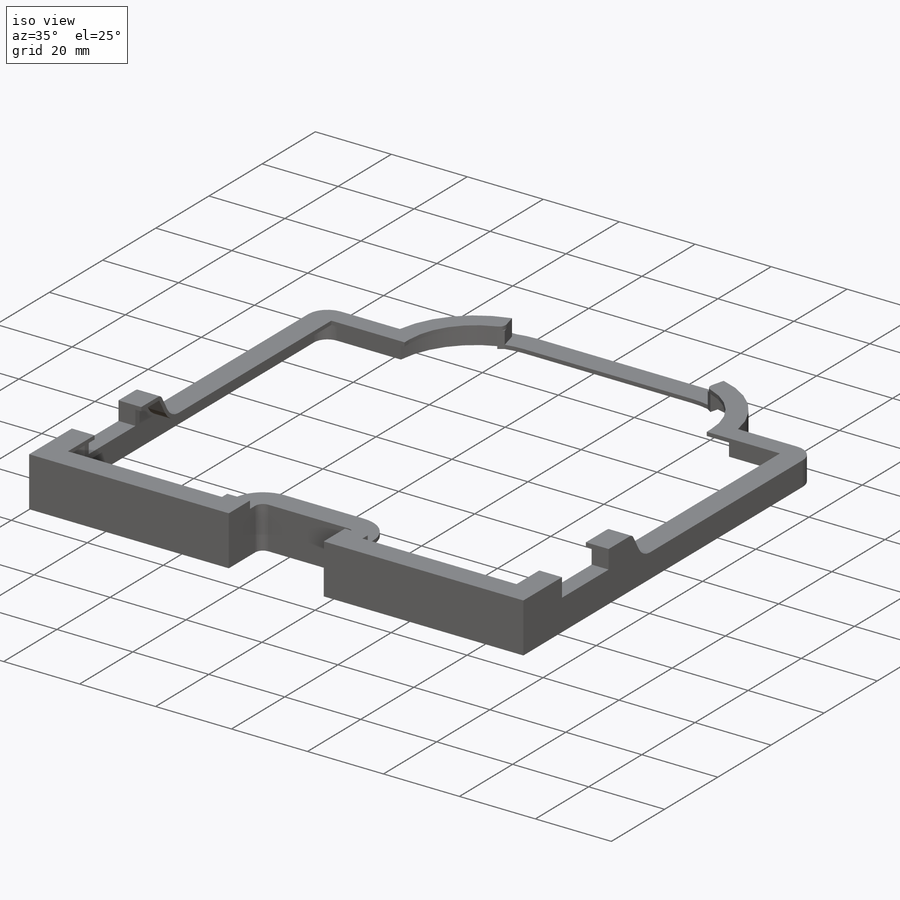
[diagram: iso view]
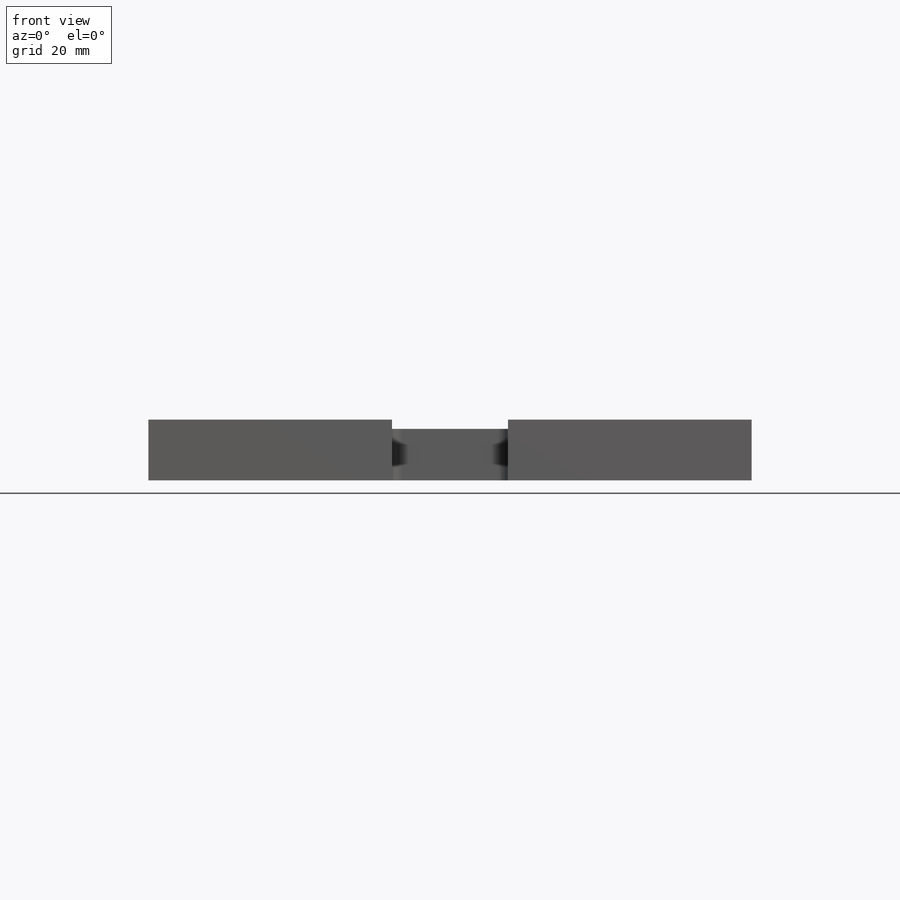
[diagram: front view]
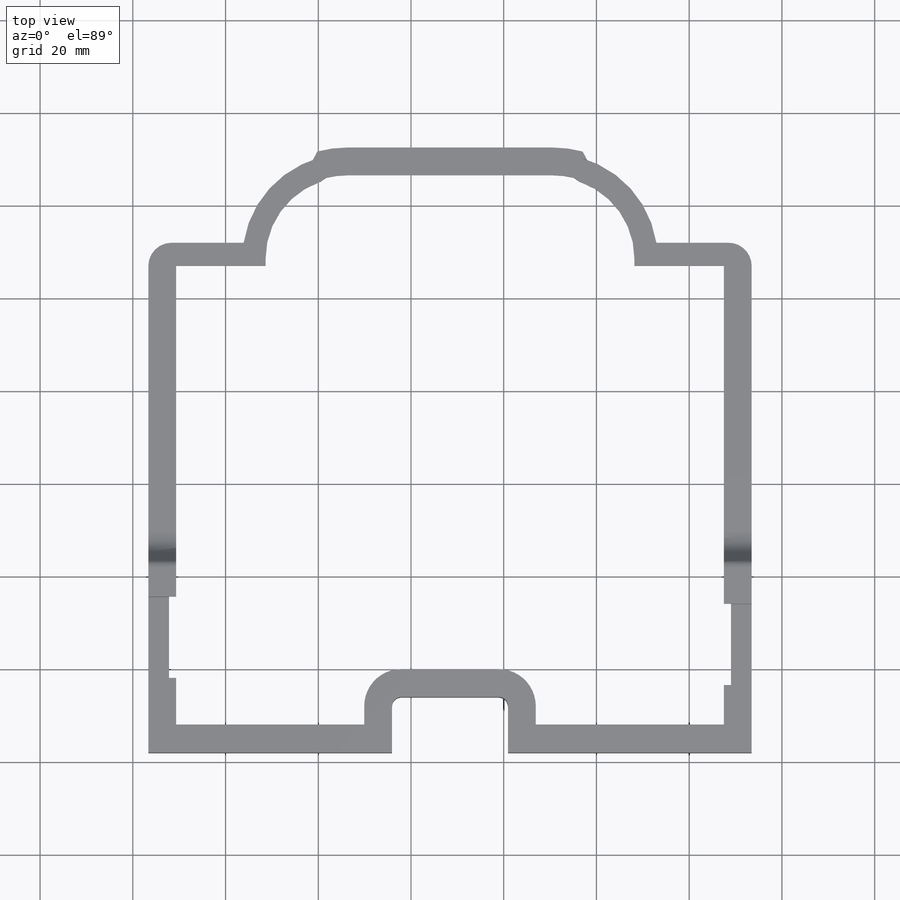
[diagram: top view]
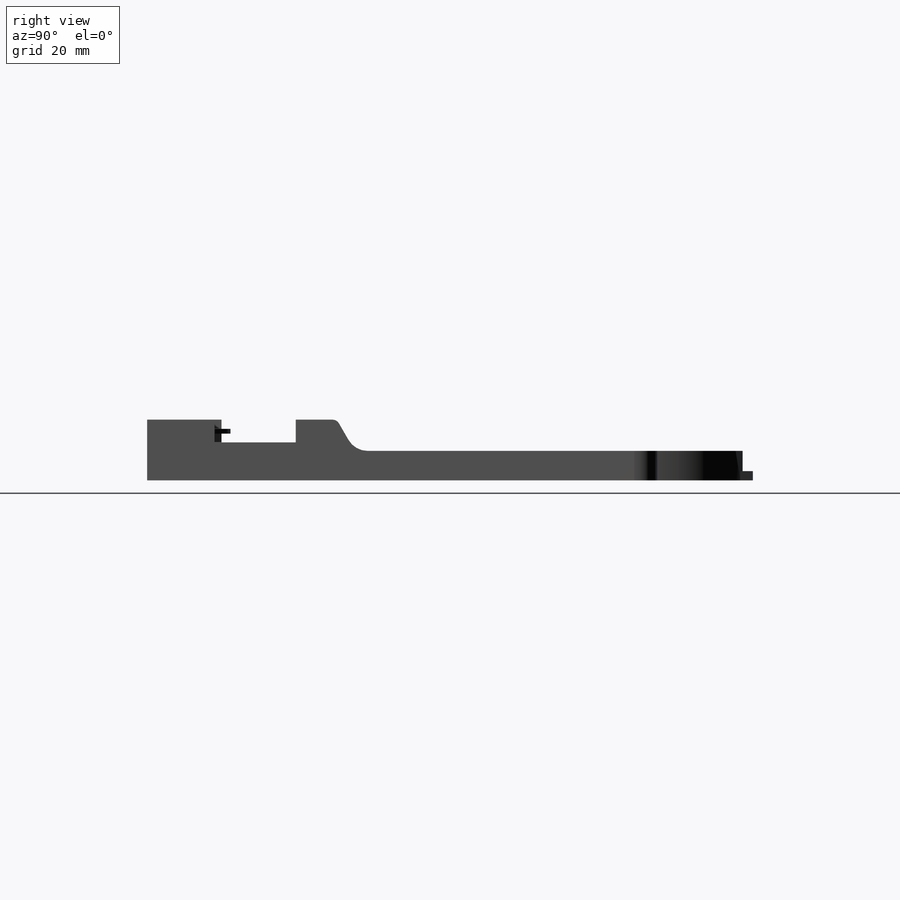
[diagram: right view]
SOLIDWORKS PART (.sldprt)
format: sldprt  version: not decoded by parser v0  size: 1,718,272 bytes
history: native  units: mm
features: sketch x18, extrude x18, mirror x2, material x1, move_body x1, plane x1, chamfer x1 + 1 further entry (+21 scaffold rows collapsed; 4 parser-record rows omitted)
feature tree (68):
  scaffold x21  (default folders/planes/origin — collapsed)
  material  "Material <not specified>"
  "CHASSIS, PLATE, REAR UNIBODY COVER"
  parser-record x4  (decoder bookkeeping rows leaked as tree rows — omitted from the tree; the rows remain in map.json)
  move_body  "Body-Move/Copy2"
  sketch  "Sketch1"  dims[D1=1.0mm]
  extrude  "Boss-Extrude1"  Depth=1mm
  plane  "Plane1"
  sketch  "Sketch2"  dims[D1=1.0mm]
  extrude  "Boss-Extrude2"  Depth=1mm
  sketch  "Sketch3"  dims[D1=1.5mm]
  extrude  "Boss-Extrude3"  Depth=1mm
  sketch  "Sketch4"  dims[D1=1.5mm]
  extrude  "Boss-Extrude4"  Depth=1mm
  sketch  "Sketch5"  dims[D1=5.0mm D2=1.0mm]
  extrude  "Boss-Extrude5"  Depth=1mm
  sketch  "Sketch6"  dims[D1=5.0mm D2=1.0mm]
  extrude  "Boss-Extrude6"  Depth=1mm
  sketch  "Sketch7"  dims[D1=1.0mm D2=5.0mm]
  extrude  "Boss-Extrude7"  Depth=1mm
  sketch  "Sketch8"  dims[D1=1.5mm]
  extrude  "Boss-Extrude8"  [1 undecoded]
  sketch  "Sketch9"  dims[D1=5.0mm D2=1.0mm]
  extrude  "Boss-Extrude9"  Depth=1mm
  sketch  "Sketch10"  dims[D1=1.5mm]
  extrude  "Boss-Extrude10"  [1 undecoded]
  mirror  "Mirror2"
  sketch  "Sketch11"  dims[D1=1.5mm]
  extrude  "Boss-Extrude12"  [1 undecoded]
  sketch  "Sketch13"  dims[D1=0.0mm]
  extrude  "Boss-Extrude13"  [1 undecoded]
  sketch  "Sketch14"  dims[D1=1.5mm]
  extrude  "Boss-Extrude14"  [1 undecoded]
  sketch  "Sketch15"  dims[D1=1.5mm]
  extrude  "Boss-Extrude15"  [1 undecoded]
  sketch  "Sketch16"
  extrude  "Boss-Extrude16"  Depth=1.5mm
  sketch  "Sketch17"
  extrude  "Boss-Extrude17"  Depth=1.5mm
  sketch  "Sketch18"  dims[D1=1.5mm]
  extrude  "Boss-Extrude19"  [1 undecoded]
  mirror  "Mirror3"
  sketch  "Sketch19"  dims[D1=1.5mm]
  extrude  "Boss-Extrude20"  [1 undecoded]
  chamfer  "Chamfer1"  Distance=2mm Angle=45deg
decode coverage: 27 of 40 modeling features carry decoded parameters; 1 rows unclassified (native names shown)
note: 8 parameter values undecoded
summary: no parameter record found for 8 features
note: suppression state not decoded; provenance and decode notes live in map.json
